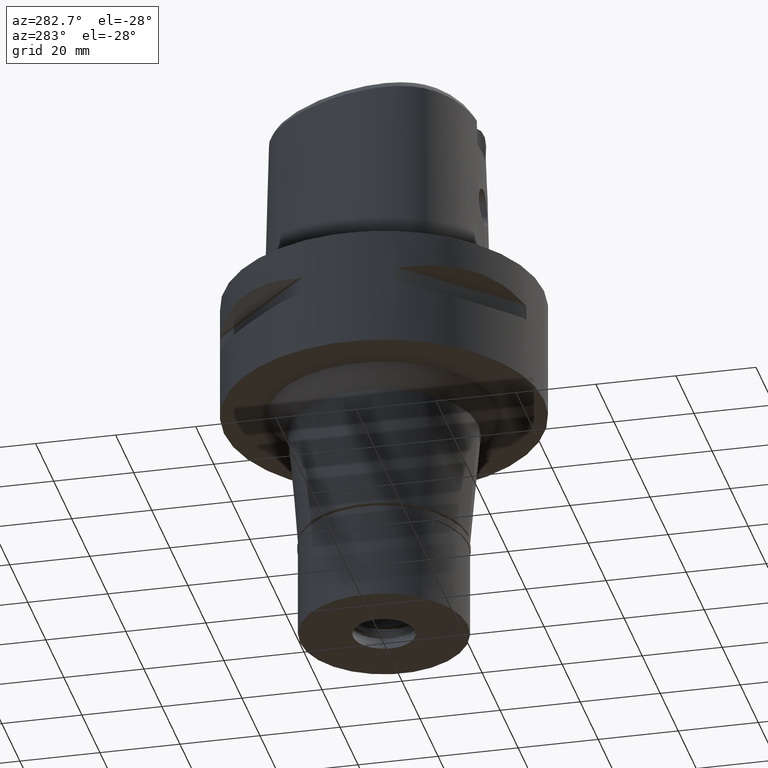
[diagram: clean part render]
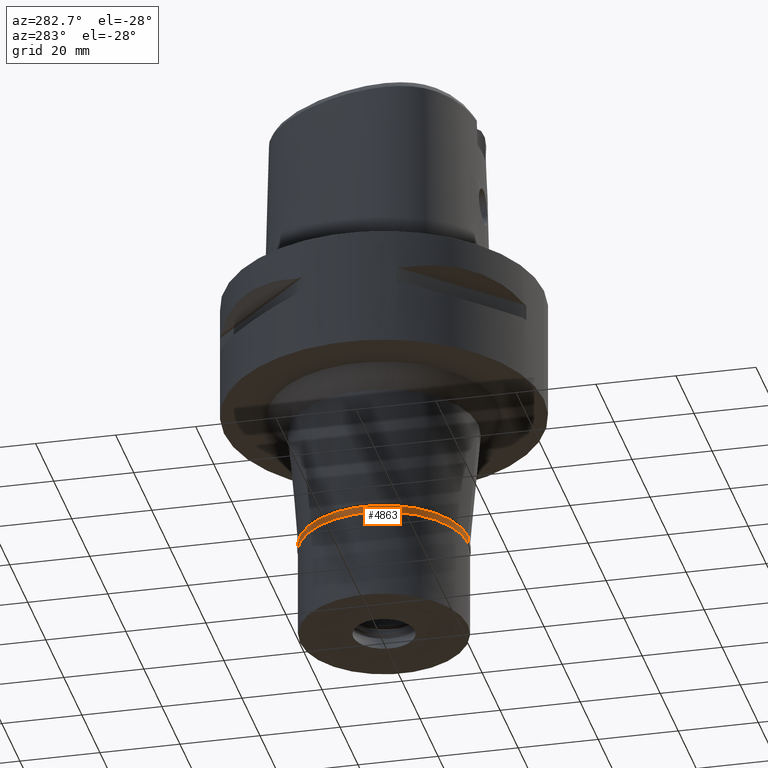
[diagram: same view with one face highlighted and labeled with its STEP entity id]
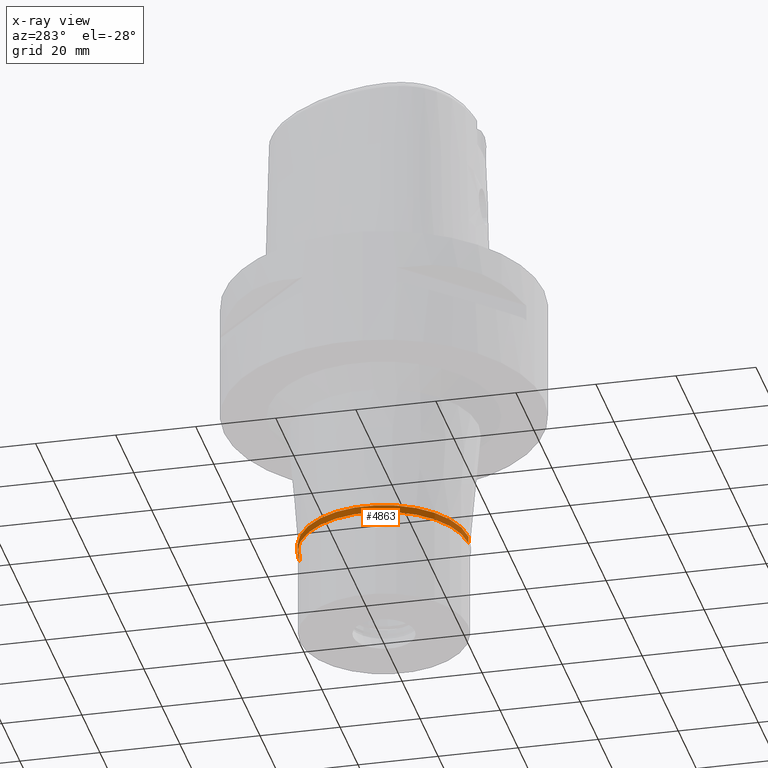
[diagram: x-ray of the same camera — body ghosted, the highlighted face saturated]
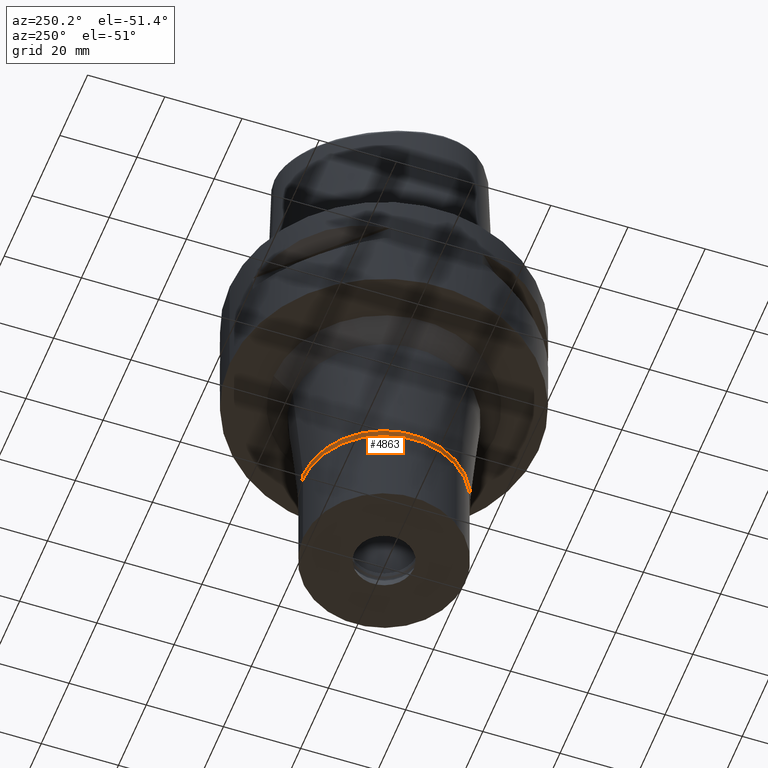
[diagram: same view with one face highlighted and labeled with its STEP entity id]
A machine part, auxiliary view. The second image highlights one B-rep face of the part: STEP entity #4863.
The next image is the same camera in x-ray: the body ghosted, the highlighted face saturated — about 0% of this face is hidden behind the body in this view.
A second angle (auxiliary view) of the same face is appended — the face is thin or edge-on in the first view.
In plain terms, the highlighted cylindrical surface (partial cylindrical patch) has radius 21.15 mm, axis along (0, 0, -1).
Its self-contained STEP definition (entity closure, byte-faithful):
#358 = CARTESIAN_POINT ( 'NONE',  ( 0.0000000000000000000, -21.14999999999999858, 0.0000000000000000000 ) ) ;
#472 = ORIENTED_EDGE ( 'NONE', *, *, #2638, .F. ) ;
#488 = VECTOR ( 'NONE', #4939, 1000.000000000000000 ) ;
#755 = DIRECTION ( 'NONE',  ( 0.0000000000000000000, 1.000000000000000000, 0.0000000000000000000 ) ) ;
#772 = ORIENTED_EDGE ( 'NONE', *, *, #4527, .T. ) ;
#925 = EDGE_CURVE ( 'NONE', #3067, #3757, #3471, .T. ) ;
#1011 = VERTEX_POINT ( 'NONE', #2929 ) ;
#1061 = FACE_OUTER_BOUND ( 'NONE', #1442, .T. ) ;
#1079 = AXIS2_PLACEMENT_3D ( 'NONE', #1857, #3410, #4982 ) ;
#1197 = CARTESIAN_POINT ( 'NONE',  ( 0.0000000000000000000, -21.14999999999999858, -1.850000000000000089 ) ) ;
#1408 = CARTESIAN_POINT ( 'NONE',  ( 0.0000000000000000000, -21.14999999999999858, 0.0000000000000000000 ) ) ;
#1442 = EDGE_LOOP ( 'NONE', ( #3991, #472, #2653, #772 ) ) ;
#1664 = LINE ( 'NONE', #4018, #2053 ) ;
#1857 = CARTESIAN_POINT ( 'NONE',  ( 0.0000000000000000000, 0.0000000000000000000, 0.0000000000000000000 ) ) ;
#1928 = AXIS2_PLACEMENT_3D ( 'NONE', #2036, #2977, #3800 ) ;
#2036 = CARTESIAN_POINT ( 'NONE',  ( 0.0000000000000000000, 0.0000000000000000000, 0.0000000000000000000 ) ) ;
#2053 = VECTOR ( 'NONE', #3574, 1000.000000000000000 ) ;
#2249 = CYLINDRICAL_SURFACE ( 'NONE', #1079, 21.14999999999999858 ) ;
#2638 = EDGE_CURVE ( 'NONE', #3067, #4038, #4911, .T. ) ;
#2653 = ORIENTED_EDGE ( 'NONE', *, *, #925, .T. ) ;
#2704 = AXIS2_PLACEMENT_3D ( 'NONE', #3470, #5046, #755 ) ;
#2781 = CIRCLE ( 'NONE', #2704, 21.14999999999999858 ) ;
#2929 = CARTESIAN_POINT ( 'NONE',  ( 0.0000000000000000000, 21.14999999999999858, -1.850000000000000089 ) ) ;
#2977 = DIRECTION ( 'NONE',  ( 0.0000000000000000000, 0.0000000000000000000, -1.000000000000000000 ) ) ;
#3067 = VERTEX_POINT ( 'NONE', #358 ) ;
#3216 = CARTESIAN_POINT ( 'NONE',  ( 0.0000000000000000000, 21.14999999999999858, 0.0000000000000000000 ) ) ;
#3410 = DIRECTION ( 'NONE',  ( 0.0000000000000000000, 0.0000000000000000000, -1.000000000000000000 ) ) ;
#3455 = EDGE_CURVE ( 'NONE', #1011, #4038, #2781, .T. ) ;
#3470 = CARTESIAN_POINT ( 'NONE',  ( 0.0000000000000000000, 0.0000000000000000000, -1.850000000000000089 ) ) ;
#3471 = CIRCLE ( 'NONE', #1928, 21.14999999999999858 ) ;
#3574 = DIRECTION ( 'NONE',  ( 0.0000000000000000000, 0.0000000000000000000, -1.000000000000000000 ) ) ;
#3757 = VERTEX_POINT ( 'NONE', #3216 ) ;
#3800 = DIRECTION ( 'NONE',  ( 0.0000000000000000000, -1.000000000000000000, 0.0000000000000000000 ) ) ;
#3991 = ORIENTED_EDGE ( 'NONE', *, *, #3455, .T. ) ;
#4018 = CARTESIAN_POINT ( 'NONE',  ( 0.0000000000000000000, 21.14999999999999858, 0.0000000000000000000 ) ) ;
#4038 = VERTEX_POINT ( 'NONE', #1197 ) ;
#4527 = EDGE_CURVE ( 'NONE', #3757, #1011, #1664, .T. ) ;
#4863 = ADVANCED_FACE ( 'NONE', ( #1061 ), #2249, .T. ) ;
#4911 = LINE ( 'NONE', #1408, #488 ) ;
#4939 = DIRECTION ( 'NONE',  ( 0.0000000000000000000, 0.0000000000000000000, -1.000000000000000000 ) ) ;
#4982 = DIRECTION ( 'NONE',  ( 0.0000000000000000000, -1.000000000000000000, 0.0000000000000000000 ) ) ;
#5046 = DIRECTION ( 'NONE',  ( 0.0000000000000000000, 0.0000000000000000000, 1.000000000000000000 ) ) ;